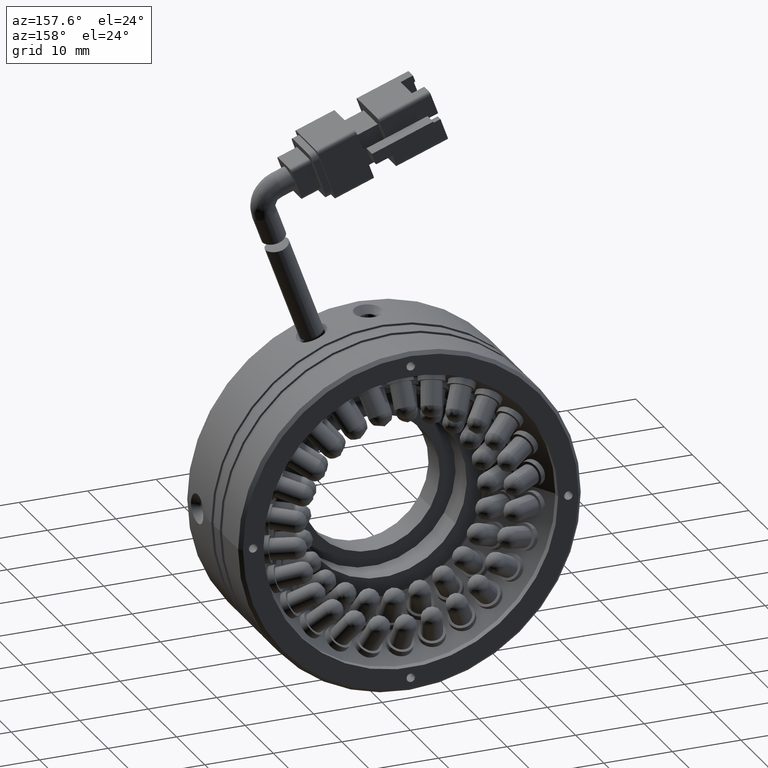
[diagram: clean part render]
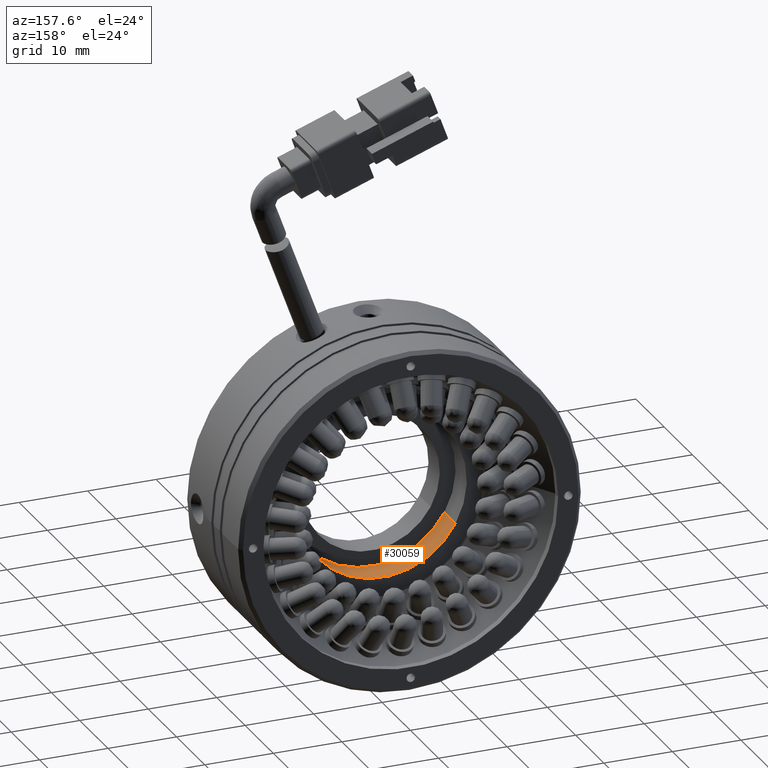
[diagram: same view with one face highlighted and labeled with its STEP entity id]
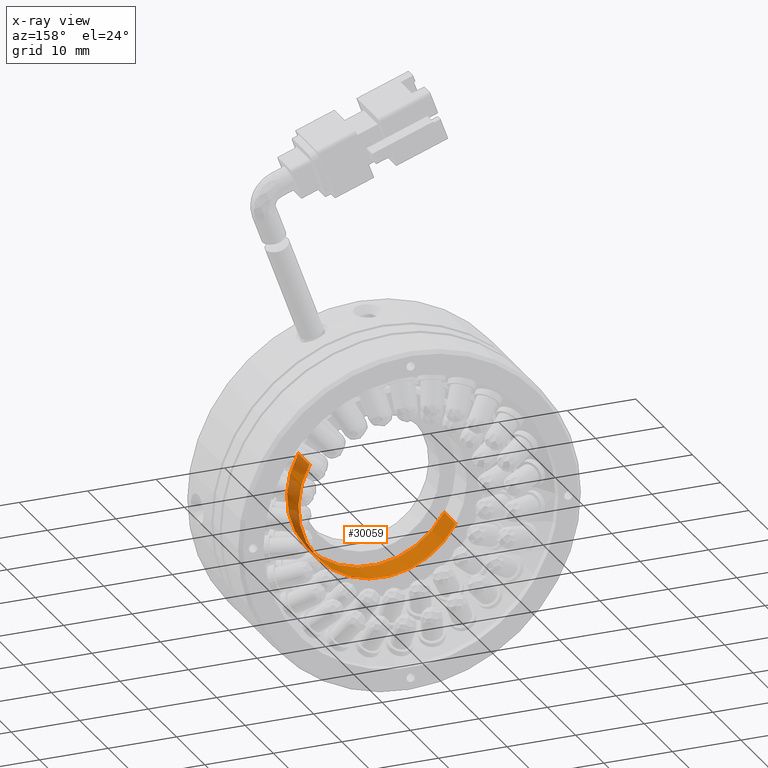
[diagram: x-ray of the same camera — body ghosted, the highlighted face saturated]
A machine part, auxiliary view. The second image highlights one B-rep face of the part: STEP entity #30059.
The next image is the same camera in x-ray: the body ghosted, the highlighted face saturated — about 24% of this face is hidden behind the body in this view.
In plain terms, the highlighted cylindrical surface (partial cylindrical patch) has radius 12.3 mm, axis along (-0, 1, -0).
Its self-contained STEP definition (entity closure, byte-faithful):
#236 = DIRECTION ( 'NONE',  ( -1.229783673277241900E-016, 1.000000000000000000, -6.123233995736763600E-017 ) ) ;
#854 = VERTEX_POINT ( 'NONE', #25547 ) ;
#4261 = DIRECTION ( 'NONE',  ( 1.229783673277241900E-016, -1.000000000000000000, 6.123233995736763600E-017 ) ) ;
#4672 = VERTEX_POINT ( 'NONE', #24600 ) ;
#5130 = VERTEX_POINT ( 'NONE', #44132 ) ;
#7008 = CARTESIAN_POINT ( 'NONE',  ( -93.72635228848822900, 7.127531206657423900, -5.037329277016266400E-015 ) ) ;
#7664 = VERTEX_POINT ( 'NONE', #38267 ) ;
#7852 = CARTESIAN_POINT ( 'NONE',  ( -104.3784647550368300, 24.01734612509121200, -6.150000000000022600 ) ) ;
#10231 = DIRECTION ( 'NONE',  ( -0.8660254037844380400, 0.0000000000000000000, -0.5000000000000008900 ) ) ;
#10468 = DIRECTION ( 'NONE',  ( -1.229783673277241900E-016, 1.000000000000000000, -6.123233995736763600E-017 ) ) ;
#10999 = DIRECTION ( 'NONE',  ( -0.8660254037844380400, -1.410344289412037200E-016, -0.5000000000000008900 ) ) ;
#11716 = VECTOR ( 'NONE', #10468, 1000.000000000000000 ) ;
#12218 = FACE_OUTER_BOUND ( 'NONE', #46727, .T. ) ;
#14098 = EDGE_CURVE ( 'NONE', #7664, #854, #41947, .T. ) ;
#14503 = ORIENTED_EDGE ( 'NONE', *, *, #27131, .T. ) ;
#17552 = CIRCLE ( 'NONE', #20074, 12.30000000000001000 ) ;
#17948 = AXIS2_PLACEMENT_3D ( 'NONE', #33926, #45466, #10231 ) ;
#19561 = ORIENTED_EDGE ( 'NONE', *, *, #43188, .F. ) ;
#20074 = AXIS2_PLACEMENT_3D ( 'NONE', #27995, #4261, #31971 ) ;
#21156 = ORIENTED_EDGE ( 'NONE', *, *, #14098, .F. ) ;
#24600 = CARTESIAN_POINT ( 'NONE',  ( -83.07423982193964200, 11.12753120665742100, 6.150000000000011900 ) ) ;
#25449 = ORIENTED_EDGE ( 'NONE', *, *, #38659, .T. ) ;
#25547 = CARTESIAN_POINT ( 'NONE',  ( -104.3784647550368300, 11.12753120665741800, -6.150000000000021700 ) ) ;
#26222 = CIRCLE ( 'NONE', #49355, 12.30000000000001000 ) ;
#26383 = LINE ( 'NONE', #36099, #47100 ) ;
#27131 = EDGE_CURVE ( 'NONE', #7664, #5130, #26222, .T. ) ;
#27995 = CARTESIAN_POINT ( 'NONE',  ( -93.72635228848822900, 11.12753120665741900, -5.282258636845737500E-015 ) ) ;
#30059 = ADVANCED_FACE ( 'NONE', ( #12218 ), #49019, .F. ) ;
#31971 = DIRECTION ( 'NONE',  ( -0.8660254037844380400, -1.410344289412037200E-016, -0.5000000000000008900 ) ) ;
#33926 = CARTESIAN_POINT ( 'NONE',  ( -93.72635228848822900, 24.01734612509121200, -6.071532165918824000E-015 ) ) ;
#34667 = DIRECTION ( 'NONE',  ( 1.229783673277241900E-016, -1.000000000000000000, 6.123233995736763600E-017 ) ) ;
#36099 = CARTESIAN_POINT ( 'NONE',  ( -83.07423982193964200, 24.01734612509121200, 6.150000000000011900 ) ) ;
#38267 = CARTESIAN_POINT ( 'NONE',  ( -104.3784647550368300, 7.127531206657422100, -6.150000000000021700 ) ) ;
#38659 = EDGE_CURVE ( 'NONE', #5130, #4672, #26383, .T. ) ;
#41947 = LINE ( 'NONE', #7852, #11716 ) ;
#43188 = EDGE_CURVE ( 'NONE', #854, #4672, #17552, .T. ) ;
#44132 = CARTESIAN_POINT ( 'NONE',  ( -83.07423982193964200, 7.127531206657425700, 6.150000000000011900 ) ) ;
#45466 = DIRECTION ( 'NONE',  ( -1.229783673277241900E-016, 1.000000000000000000, -6.123233995736763600E-017 ) ) ;
#46727 = EDGE_LOOP ( 'NONE', ( #14503, #25449, #19561, #21156 ) ) ;
#47100 = VECTOR ( 'NONE', #236, 1000.000000000000000 ) ;
#49019 = CYLINDRICAL_SURFACE ( 'NONE', #17948, 12.30000000000001000 ) ;
#49355 = AXIS2_PLACEMENT_3D ( 'NONE', #7008, #34667, #10999 ) ;